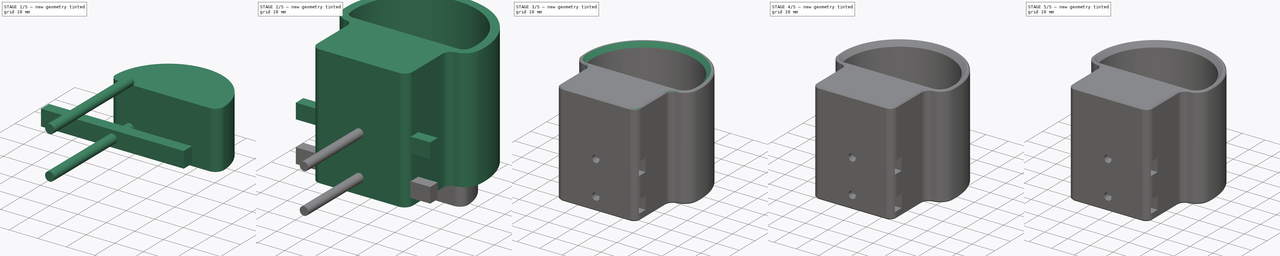
[diagram: build sequence overview — one tinted view per stage of 5, left to right]
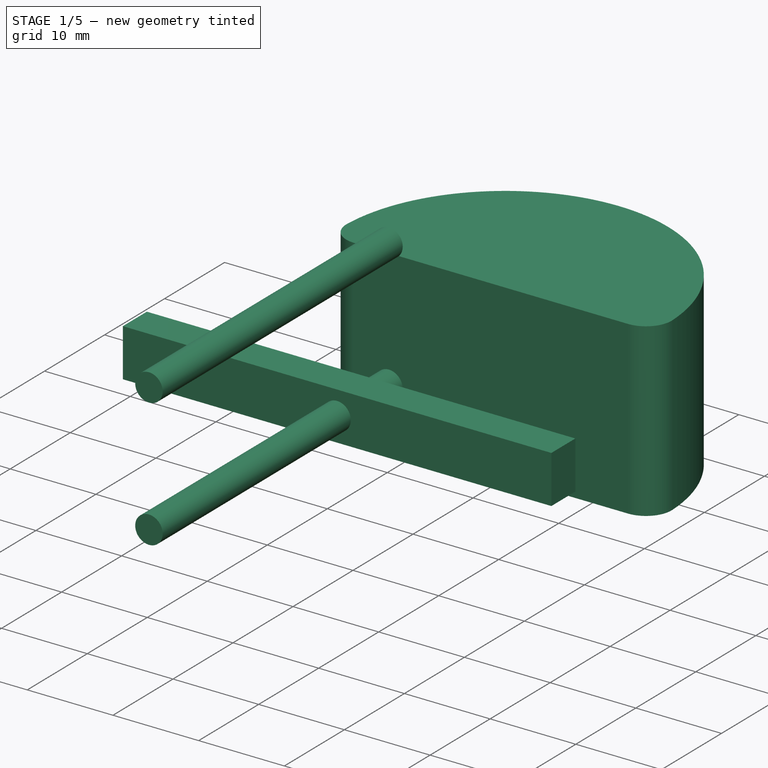
[diagram: stage 1 of 5 — iso view after this stage's code; geometry added in this stage tinted green]
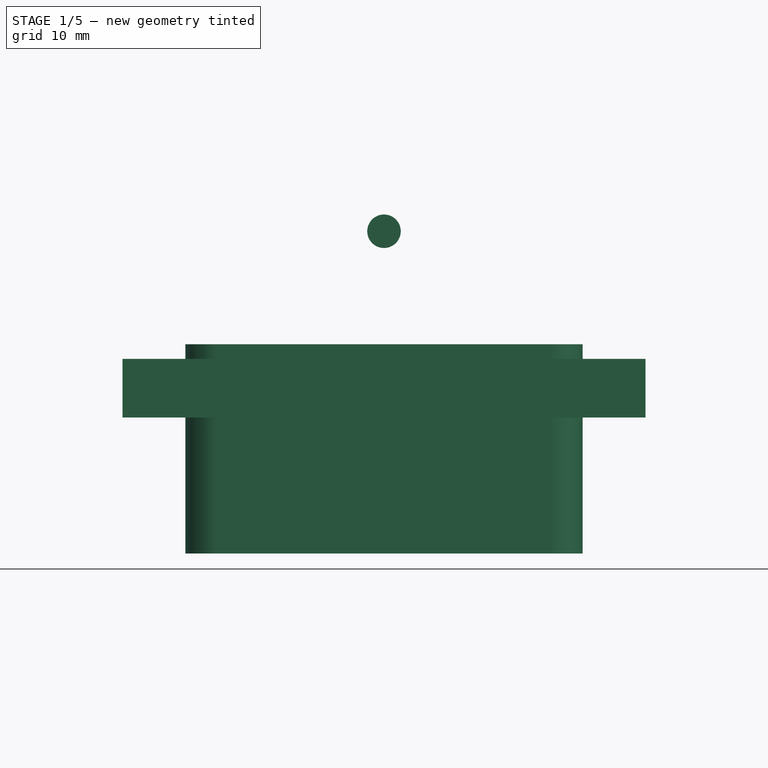
[diagram: stage 1 of 5 — front view after this stage's code; geometry added in this stage tinted green]
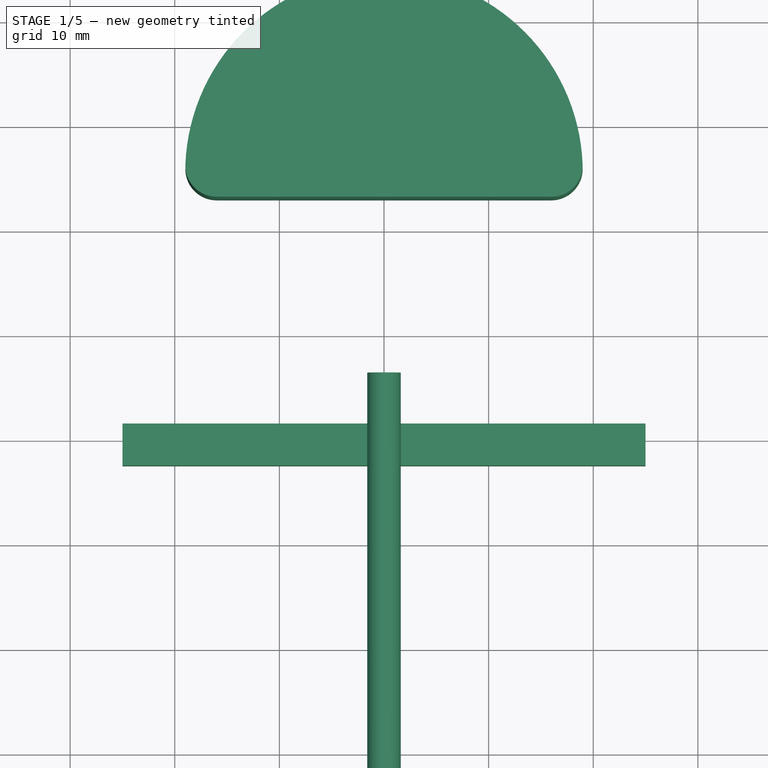
[diagram: stage 1 of 5 — top view after this stage's code; geometry added in this stage tinted green]
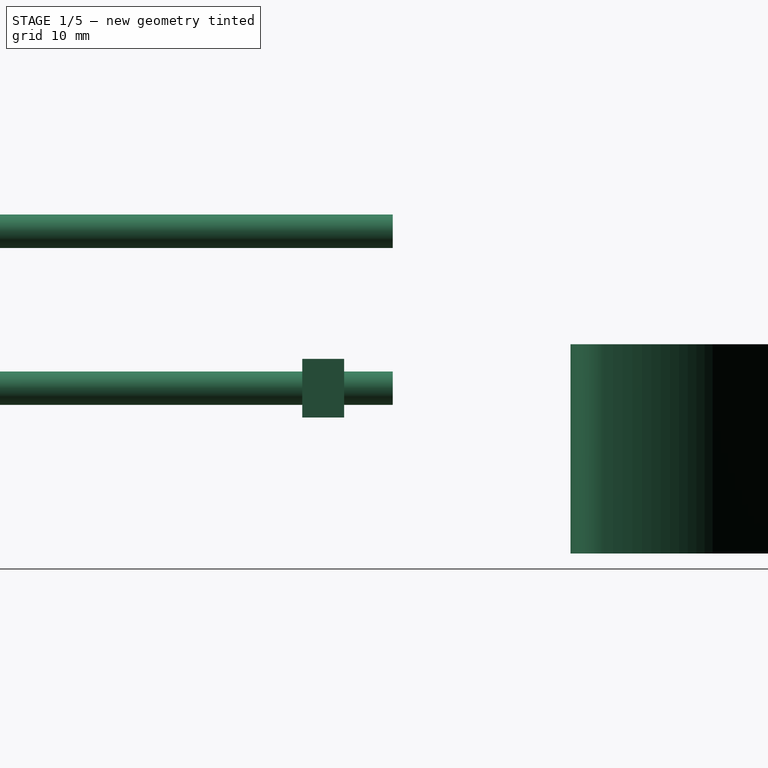
[diagram: stage 1 of 5 — right view after this stage's code; geometry added in this stage tinted green]
FCSTD DOCUMENT  (FreeCAD 0.18R16093 (Git))
Label: remoteholder
License: All rights reserved
LicenseURL: http://en.wikipedia.org/wiki/All_rights_reserved
objects: Sketcher::SketchObject×4, Part::Extrusion×4, Part::Cut×4, Part::MultiFuse×4, Part::Cylinder×3, Part::Chamfer×3, PartDesign::Body×3, Part::Fillet×2, PartDesign::FeatureBase×2, Part::Box×1, Part::Mirroring×1
note: 31 computed .brp shape members not serialized (recipe doc carries the construction recipe); baked Part::Feature solids carry a one-line shape summary decoded from their .brp

FEATURE [Sketcher::SketchObject] Sketch002
  ExternalGeometry = -> [Sketch001]
  MapMode = 5
  Support = -> [XY_Plane]
  sketch-geometry (4):
    g0: LineSegment StartX=-25 StartY=-18.6465 StartZ=0 EndX=25 EndY=-18.6465 EndZ=0
    g1: LineSegment StartX=25 StartY=-18.6465 StartZ=0 EndX=25 EndY=-22.6465 EndZ=0
    g2: LineSegment StartX=25 StartY=-22.6465 StartZ=0 EndX=-25 EndY=-22.6465 EndZ=0
    g3: LineSegment StartX=-25 StartY=-22.6465 StartZ=0 EndX=-25 EndY=-18.6465 EndZ=0
  constraints (11):
    c: Coincident(g0,g1)
    c: Coincident(g1,g2)
    c: Coincident(g2,g3)
    c: Coincident(g3,g0)
    c: Horizontal(g0)
    c: Vertical(g1)
    c: Vertical(g3)
    c: DistanceY(g-3,g2) = 2
    c: DistanceY(g3,g3) = 4
    c: Symmetric(g2,g1,g-2)
    c: DistanceX(g0,g0) = 50
FEATURE [Part::Extrusion] Extrude002  label="nutspace"
  Base = -> Sketch002
  Dir = (0,0,1)
  DirMode = 2
  FaceMakerClass = Part::FaceMakerBullseye
  LengthFwd = 5.6
  LengthRev = 0
  Placement = pos=(0,0,3) rot=(0,0,1;0rad)
  Solid = true
  Symmetric = false
FEATURE [PartDesign::Body] Body001  label="nutspace2"
  BaseFeature = -> Extrude002
  Group = -> [Clone]
  Origin = -> Origin001
  Placement = pos=(0,0,18) rot=(0,0,1;0rad)
  Tip = -> Clone
  expr: Placement.Base.z = 3 + 15
FEATURE [Sketcher::SketchObject] Sketch003
  ExternalGeometry = -> [Sketch]
  MapMode = 5
  Support = -> [XY_Plane]
  sketch-geometry (4):
    g0: ArcOfCircle CenterX=0 CenterY=5.33906 CenterZ=0 NormalX=0 NormalY=0 NormalZ=1 AngleXU=0 Radius=19 StartAngle=0.0413206 EndAngle=3.10027
    g1: ArcOfCircle CenterX=-15.9863 CenterY=6 CenterZ=0 NormalX=0 NormalY=0 NormalZ=1 AngleXU=0 Radius=3 StartAngle=3.10027 EndAngle=4.71239
    g2: ArcOfCircle CenterX=15.9863 CenterY=6 CenterZ=0 NormalX=0 NormalY=0 NormalZ=1 AngleXU=0 Radius=3 StartAngle=4.71239 EndAngle=6.32451
    g3: LineSegment StartX=-15.9863 StartY=3 StartZ=0 EndX=15.9863 EndY=3 EndZ=0
  constraints (11):
    c: Coincident(g0,g-3)
    c: Tangent(g1,g0) = -1.5708
    c: Coincident(g2,g0)
    c: Symmetric(g2,g1,g-2)
    c: Horizontal(g0,g0)
    c: Horizontal(g3)
    c: Tangent(g3,g1) = -1.5708
    c: Coincident(g2,g3)
    c: Radius(g2) = 3
    c: DistanceY(g-1,g2) = 3
    c: Radius(g0) = 19
FEATURE [PartDesign::Body] Body
  Group = -> [Sketch,Sketch001,Sketch002,Sketch003]
  Origin = -> Origin
FEATURE [Part::Extrusion] Extrude003
  Base = -> Sketch003
  Dir = (0,0,1)
  DirMode = 2
  FaceMakerClass = Part::FaceMakerBullseye
  LengthFwd = 10
  LengthRev = 10
  Solid = true
  Symmetric = false
FEATURE [Part::Cylinder] Cylinder002
  Angle = 360
  AttacherType = Attacher::AttachEngine3D
  Height = 40
  Placement = pos=(0,-14,5.8) rot=(1,0,0;1.5708rad)
  Radius = 1.6
  expr: Placement.Base.z = 5.6 / 2 + 3
  expr: Radius = 3.2 / 2
FEATURE [PartDesign::FeatureBase] Clone001
  BaseFeature = -> Cylinder002
  Placement = pos=(0,-14,5.8) rot=(1,0,0;1.5708rad)
FEATURE [PartDesign::Body] Body002
  BaseFeature = -> Cylinder002
  Group = -> [Clone001]
  Origin = -> Origin002
  Placement = pos=(0,0,15) rot=(0,0,1;0rad)
  Tip = -> Clone001
FEATURE [Part::MultiFuse] Fusion003  label="M3_screw_holes"
  Shapes = -> [Cylinder002,Body002]
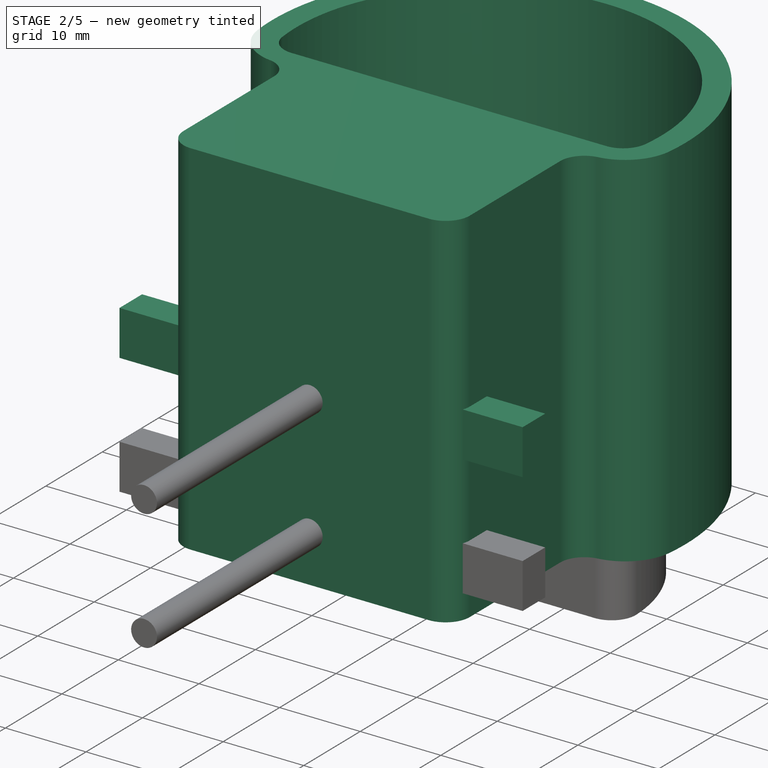
[diagram: stage 2 of 5 — iso view after this stage's code; geometry added in this stage tinted green]
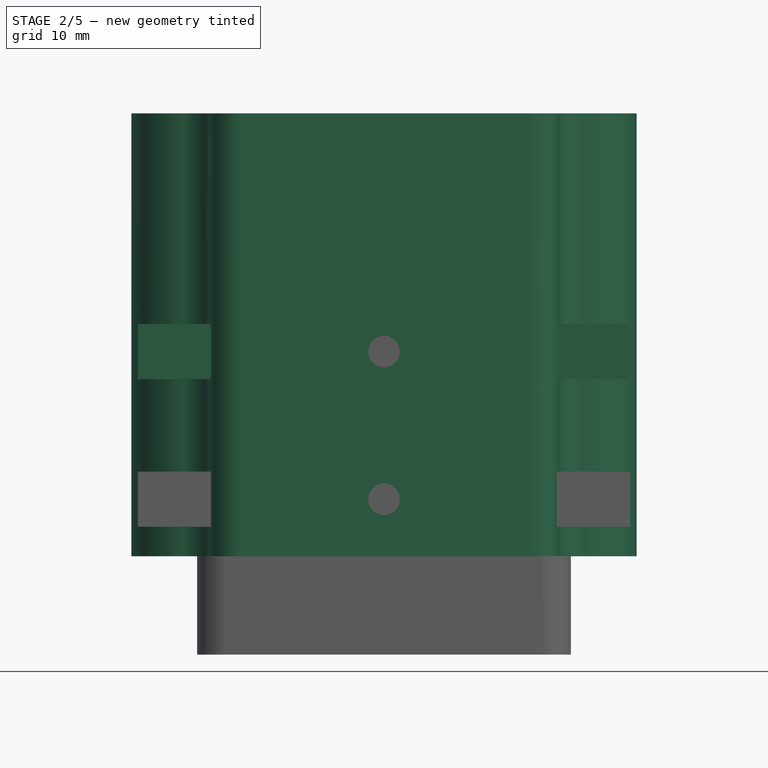
[diagram: stage 2 of 5 — front view after this stage's code; geometry added in this stage tinted green]
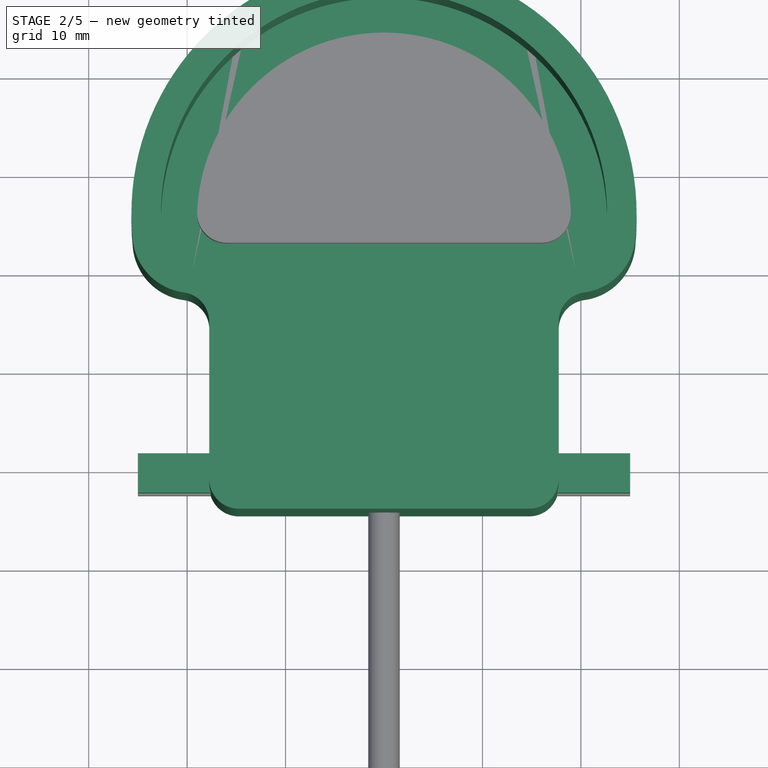
[diagram: stage 2 of 5 — top view after this stage's code; geometry added in this stage tinted green]
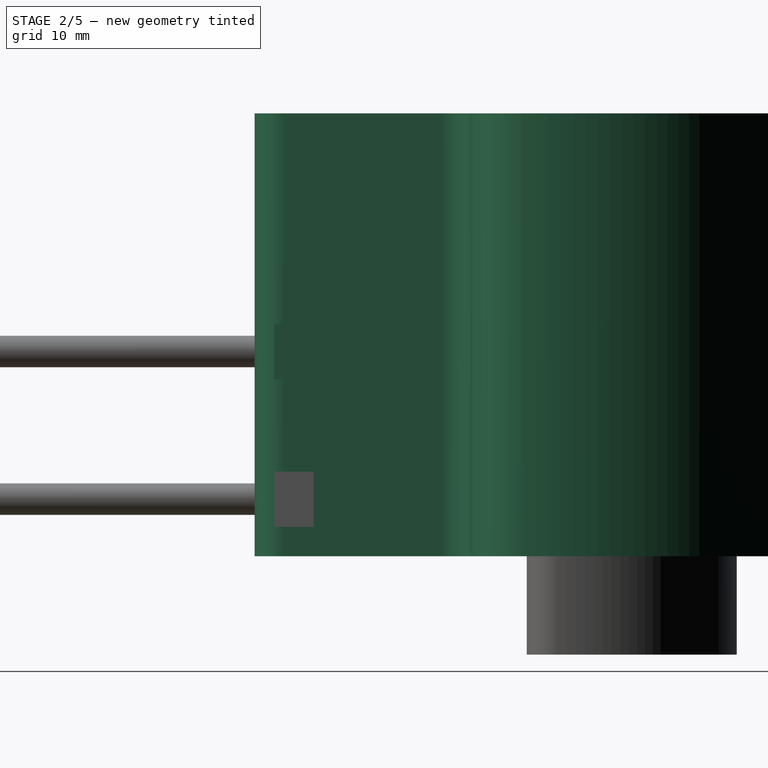
[diagram: stage 2 of 5 — right view after this stage's code; geometry added in this stage tinted green]
FEATURE [Sketcher::SketchObject] Sketch  label="innerKeepout"
  MapMode = 5
  Support = -> [XY_Plane]
  sketch-geometry (7):
    g0: LineSegment [constr] StartX=-22.5 StartY=0 StartZ=0 EndX=22.5 EndY=0 EndZ=0
    g1: ArcOfCircle CenterX=0 CenterY=5.33906 CenterZ=0 NormalX=0 NormalY=0 NormalZ=1 AngleXU=0 Radius=22.6609 StartAngle=6.16393 EndAngle=9.54403
    g2: GeomPoint X=0 Y=28 Z=0
    g3: LineSegment [constr] StartX=0 StartY=0 StartZ=0 EndX=0 EndY=28 EndZ=0
    g4: ArcOfCircle CenterX=-19.5213 CenterY=3 CenterZ=0 NormalX=0 NormalY=0 NormalZ=1 AngleXU=0 Radius=3 StartAngle=3.26084 EndAngle=4.71239
    g5: ArcOfCircle CenterX=19.5213 CenterY=3 CenterZ=0 NormalX=0 NormalY=0 NormalZ=1 AngleXU=0 Radius=3 StartAngle=4.71239 EndAngle=6.16393
    g6: LineSegment StartX=-19.5213 StartY=0 StartZ=0 EndX=19.5213 EndY=0 EndZ=0
  constraints (18):
    c: PointOnObject(g0,g-1)
    c: DistanceX(g0,g0) = 45
    c: Symmetric(g0,g0,g-1)
    c: PointOnObject(g1,g-2)
    c: PointOnObject(g2,g1)
    c: Coincident(g3,g-1)
    c: Coincident(g3,g2)
    c: DistanceY(g3,g3) = 28
    c: Tangent(g4,g0) = -1.5708
    c: Tangent(g4,g1) = -1.5708
    c: Radius(g4) = 3
    c: Symmetric(g4,g5,g-1)
    c: Tangent(g5,g1) = -1.5708
    c: Equal(g4,g5)
    c: Vertical(g1,g0)
    c: PointOnObject(g2,g-2)
    c: Coincident(g6,g4)
    c: Coincident(g6,g5)
FEATURE [Part::Extrusion] Extrude
  Base = -> Sketch
  Dir = (0,0,1)
  DirMode = 2
  FaceMakerClass = Part::FaceMakerBullseye
  LengthFwd = 45
  LengthRev = 0
  Placement = pos=(0,0,3) rot=(0,0,1;0rad)
  Solid = true
  Symmetric = false
FEATURE [Sketcher::SketchObject] Sketch001
  ExternalGeometry = -> [Sketch]
  MapMode = 5
  Support = -> [XY_Plane]
  sketch-geometry (13):
    g0: ArcOfCircle CenterX=-14.75 CenterY=-21.6465 CenterZ=0 NormalX=0 NormalY=0 NormalZ=1 AngleXU=0 Radius=3 StartAngle=3.14159 EndAngle=4.71239
    g1: ArcOfCircle CenterX=14.75 CenterY=-21.6465 CenterZ=0 NormalX=0 NormalY=0 NormalZ=1 AngleXU=0 Radius=3 StartAngle=4.71239 EndAngle=6.28319
    g2: LineSegment StartX=-14.75 StartY=-24.6465 StartZ=0 EndX=14.75 EndY=-24.6465 EndZ=0
    g3: LineSegment StartX=-17.75 StartY=-21.6465 StartZ=0 EndX=-17.75 EndY=-5.64647 EndZ=0
    g4: LineSegment StartX=17.75 StartY=-21.6465 StartZ=0 EndX=17.75 EndY=-5.64647 EndZ=0
    g5: ArcOfCircle CenterX=-20.75 CenterY=-5.64647 CenterZ=0 NormalX=0 NormalY=0 NormalZ=1 AngleXU=0 Radius=3 StartAngle=1e-16 EndAngle=1.4373
    g6: ArcOfCircle CenterX=20.75 CenterY=-5.64647 CenterZ=0 NormalX=0 NormalY=0 NormalZ=1 AngleXU=0 Radius=3 StartAngle=1.70429 EndAngle=3.14159
    g7: ArcOfCircle CenterX=0 CenterY=5.33906 CenterZ=0 NormalX=0 NormalY=0 NormalZ=1 AngleXU=0 Radius=25.6609 StartAngle=6.17793 EndAngle=9.53003
    g8: LineSegment [constr] StartX=0 StartY=5.33906 StartZ=0 EndX=-36.3932 EndY=15.137 EndZ=0
    g9: GeomPoint X=-24.7787 Y=12.0101 Z=0
    g10: GeomPoint X=-21.8818 Y=11.2302 Z=0
    g11: ArcOfCircle CenterX=-19.5521 CenterY=3.27346 CenterZ=0 NormalX=0 NormalY=0 NormalZ=1 AngleXU=0 Radius=6 StartAngle=3.24685 EndAngle=4.5789
    g12: ArcOfCircle CenterX=19.5521 CenterY=3.27346 CenterZ=0 NormalX=0 NormalY=0 NormalZ=1 AngleXU=0 Radius=6 StartAngle=4.84588 EndAngle=6.17793
  constraints (34):
    c: Tangent(g2,g0) = -1.5708
    c: Horizontal(g2)
    c: Tangent(g1,g2) = -1.5708
    c: Equal(g0,g1)
    c: Horizontal(g0,g0)
    c: Symmetric(g0,g1,g-2)
    c: Radius(g0) = 3
    c: DistanceX(g0,g1) = 35.5
    c: Vertical(g3)
    c: Coincident(g3,g0)
    c: Coincident(g1,g4)
    c: Symmetric(g4,g3,g-2)
    c: Coincident(g6,g4)
    c: Coincident(g5,g3)
    c: Horizontal(g5,g3)
    c: Symmetric(g6,g5,g-2)
    c: Radius(g5) = 3
    c: Symmetric(g5,g6,g-2)
    c: DistanceY(g3,g3) = 16
    c: Coincident(g7,g-3)
    c: Coincident(g8,g7)
    c: PointOnObject(g9,g8)
    c: PointOnObject(g9,g7)
    c: PointOnObject(g10,g-3)
    c: PointOnObject(g10,g8)
    c: Distance(g10,g9) = 3
    c: Tangent(g11,g7) = -1.5708
    c: Radius(g11) = 6
    c: Horizontal(g7,g-3)
    c: Horizontal(g7,g7)
    c: Tangent(g5,g11) = 1.5708
    c: Coincident(g12,g7)
    c: Coincident(g6,g12)
    c: Symmetric(g12,g11,g-2)
FEATURE [Part::Extrusion] Extrude001
  Base = -> Sketch001
  Dir = (0,0,1)
  DirMode = 2
  FaceMakerClass = Part::FaceMakerBullseye
  LengthFwd = 45
  LengthRev = 0
  Solid = true
  Symmetric = false
FEATURE [Part::Cut] Cut
  Base = -> Extrude001
  Tool = -> Extrude
FEATURE [PartDesign::FeatureBase] Clone
  BaseFeature = -> Extrude002
FEATURE [Part::MultiFuse] Fusion002  label="M3_nut_inserts"
  Shapes = -> [Extrude002,Body001,Extrude003]
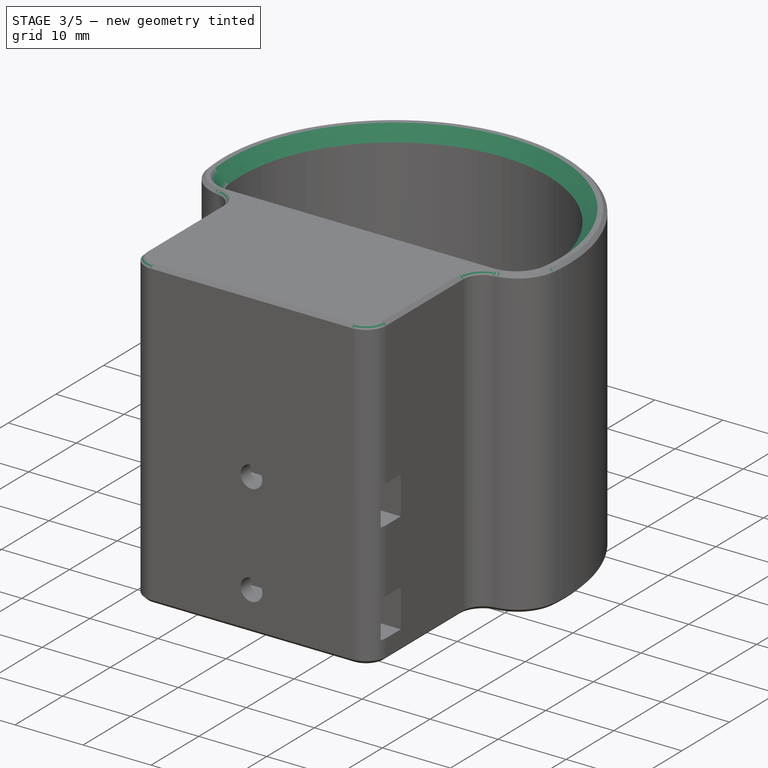
[diagram: stage 3 of 5 — iso view after this stage's code; geometry added in this stage tinted green]
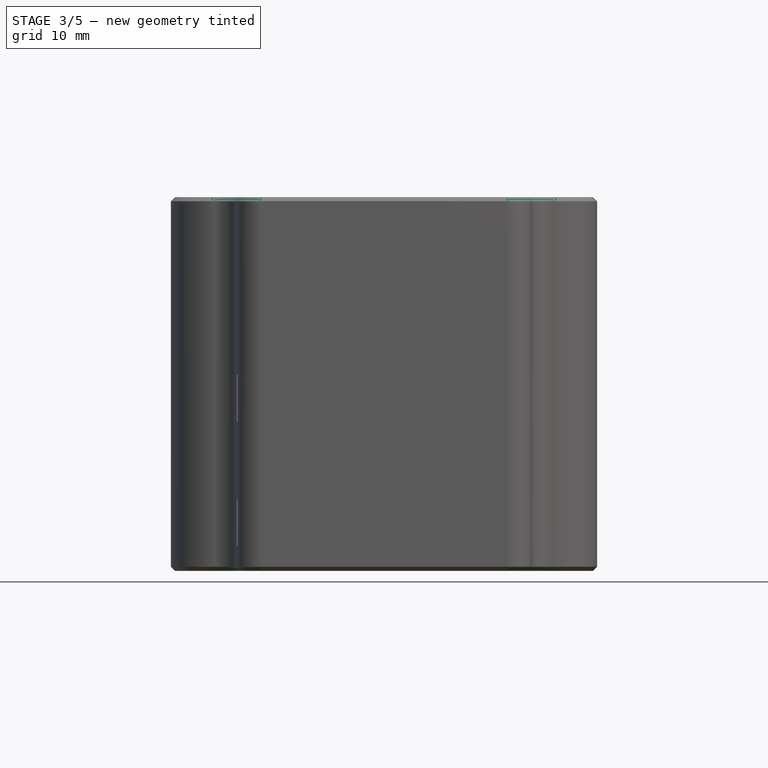
[diagram: stage 3 of 5 — front view after this stage's code; geometry added in this stage tinted green]
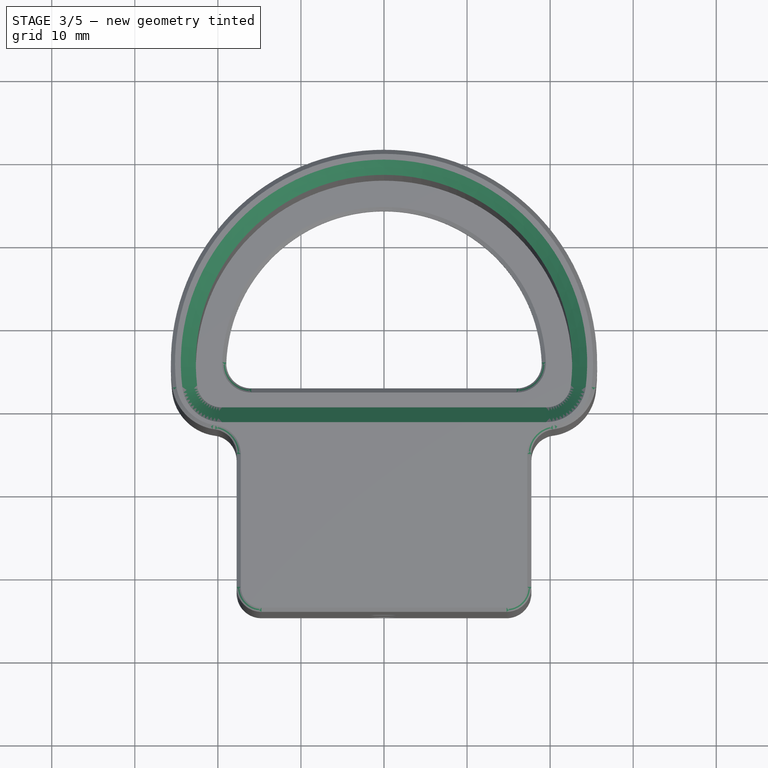
[diagram: stage 3 of 5 — top view after this stage's code; geometry added in this stage tinted green]
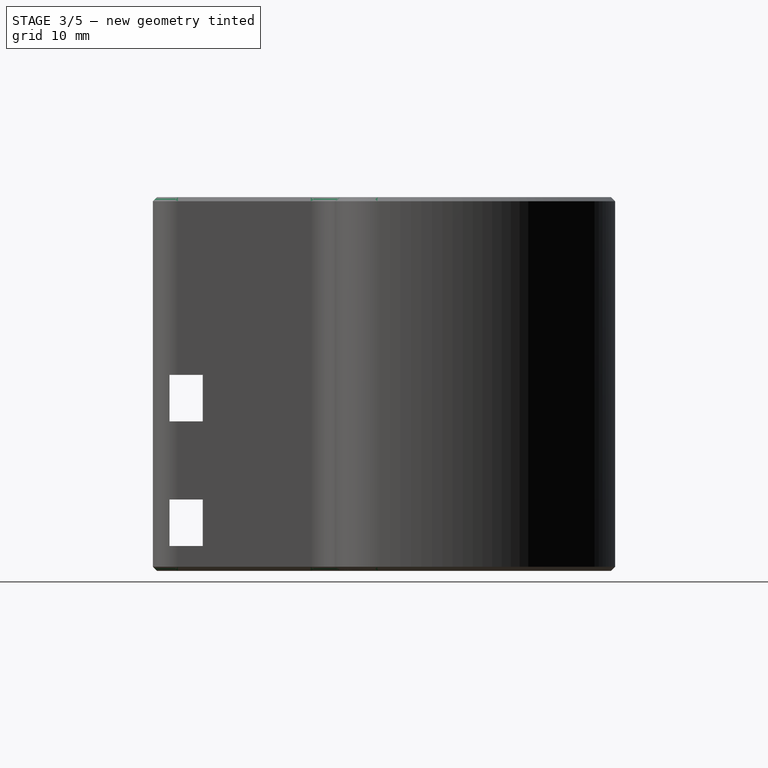
[diagram: stage 3 of 5 — right view after this stage's code; geometry added in this stage tinted green]
FEATURE [Part::Cut] Cut002
  Base = -> Cut
  Tool = -> Fusion002
FEATURE [Part::Cut] Cut003
  Base = -> Cut002
  Tool = -> Fusion003
FEATURE [Part::Chamfer] Chamfer001
  Base = -> Cut003
  Edges = 4 edges r=1.8: [Edge38,Edge39,Edge40,Edge41]
FEATURE [Part::Chamfer] Chamfer002
  Base = -> Chamfer001
  Edges = 28 edges r=0.5: [Edge5,Edge6,Edge7,Edge8,Edge9,Edge10,Edge11,Edge12,Edge13,Edge14,Edge23,Edge34,Edge42,Edge47,Edge48,Edge59,Edge60,Edge69,Edge71,Edge72,Edge81,Edge82,Edge83,Edge84,Edge99,Edge100,Edge101,Edge102]
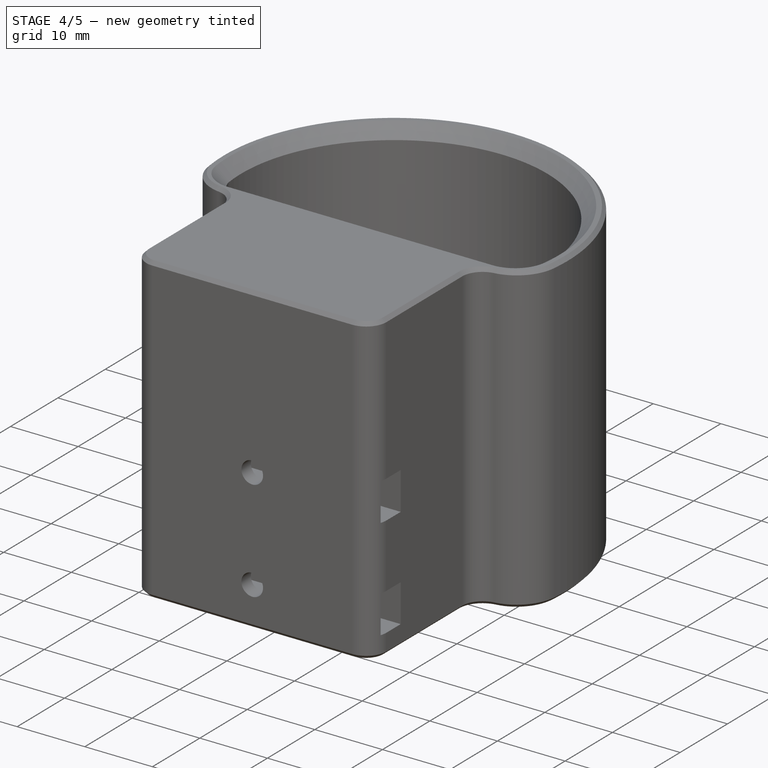
[diagram: stage 4 of 5 — iso view after this stage's code; geometry added in this stage tinted green]
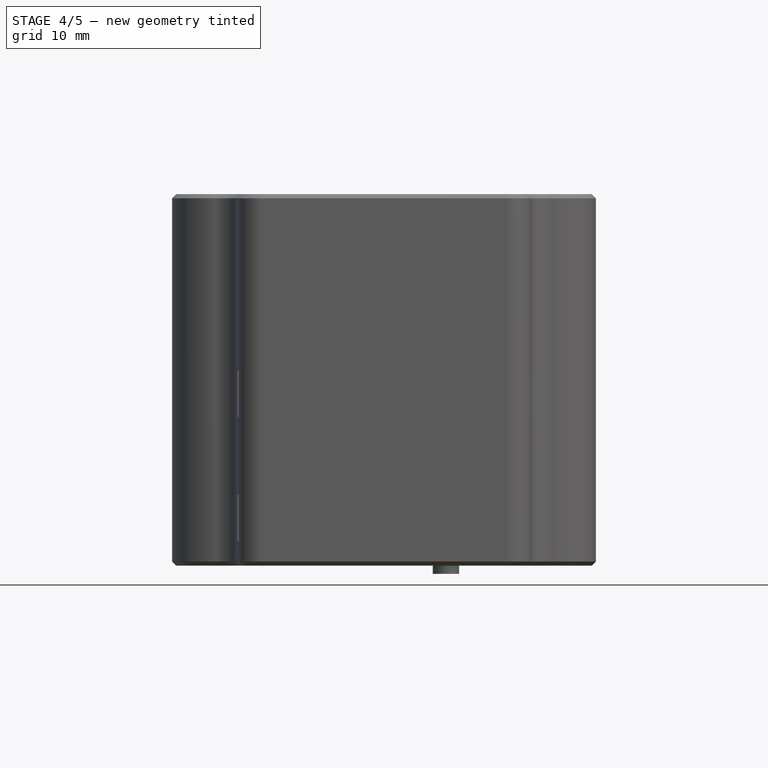
[diagram: stage 4 of 5 — front view after this stage's code; geometry added in this stage tinted green]
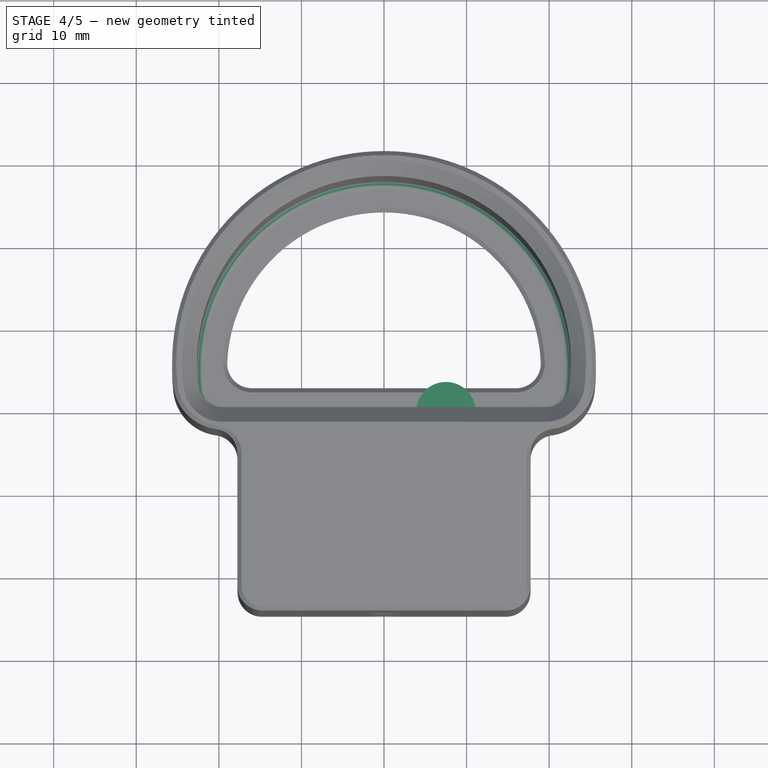
[diagram: stage 4 of 5 — top view after this stage's code; geometry added in this stage tinted green]
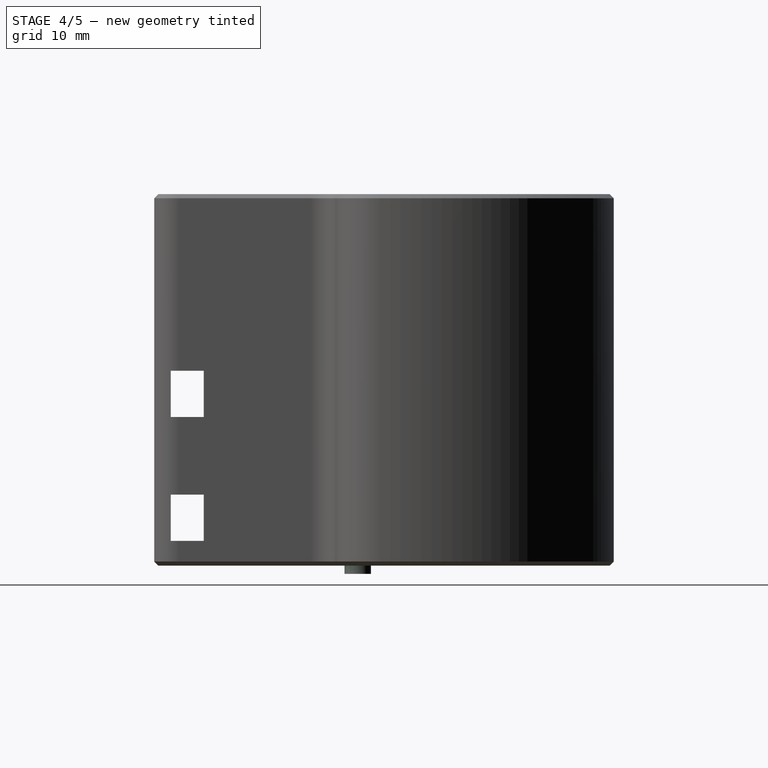
[diagram: stage 4 of 5 — right view after this stage's code; geometry added in this stage tinted green]
FEATURE [Part::Cylinder] Cylinder
  Angle = 360
  AttacherType = Attacher::AttachEngine3D
  Height = 10
  Placement = pos=(-7.5,0,-1) rot=(0,0,1;0rad)
  Radius = 1.6
  expr: Radius = 3.2 / 2
FEATURE [Part::Cylinder] Cylinder001
  Angle = 360
  AttacherType = Attacher::AttachEngine3D
  Height = 10
  Placement = pos=(-7.5,0,2) rot=(0,0,1;0rad)
  Radius = 3.6
  expr: Placement.Base.x = -15 / 2
  expr: Radius = 7.2 / 2
FEATURE [Part::MultiFuse] Fusion
  Shapes = -> [Cylinder,Cylinder001]
FEATURE [Part::Mirroring] Part__Mirroring  label="Fusion (Mirror #1)"
  Base = (0,0,0)
  Normal = (1,0,0)
  Source = -> Fusion
FEATURE [Part::Fillet] Fillet001  label="remoteholder"
  Base = -> Chamfer002
  Edges = 4 edges r=1: [Edge94,Edge97,Edge98,Edge100]
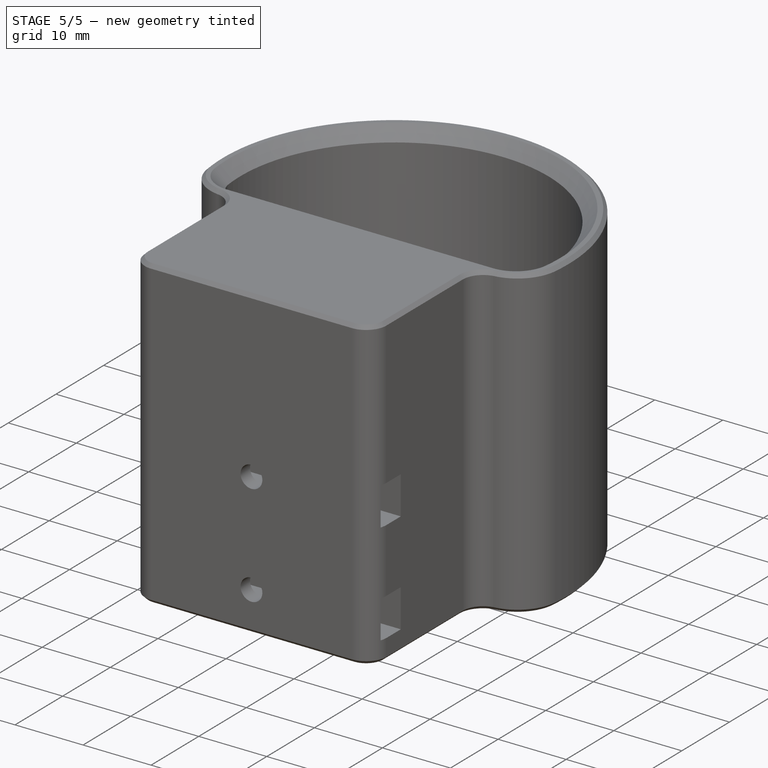
[diagram: stage 5 of 5 — iso view after this stage's code; geometry added in this stage tinted green]
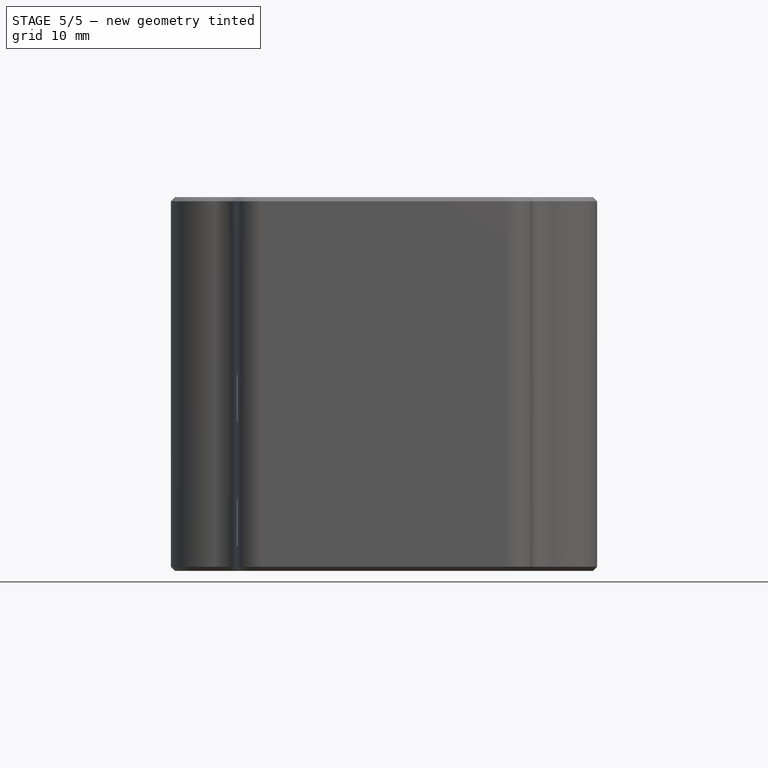
[diagram: stage 5 of 5 — front view after this stage's code; geometry added in this stage tinted green]
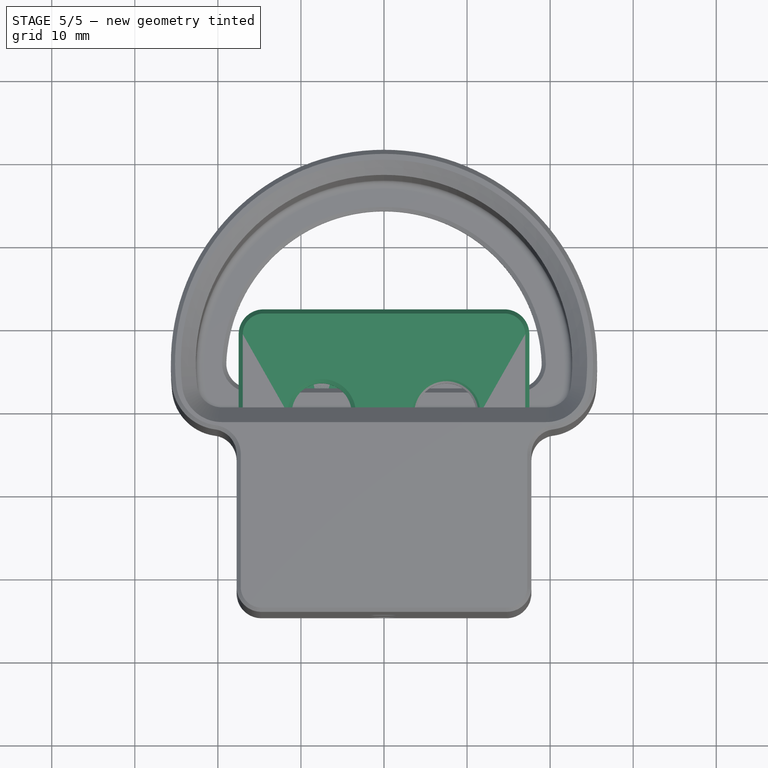
[diagram: stage 5 of 5 — top view after this stage's code; geometry added in this stage tinted green]
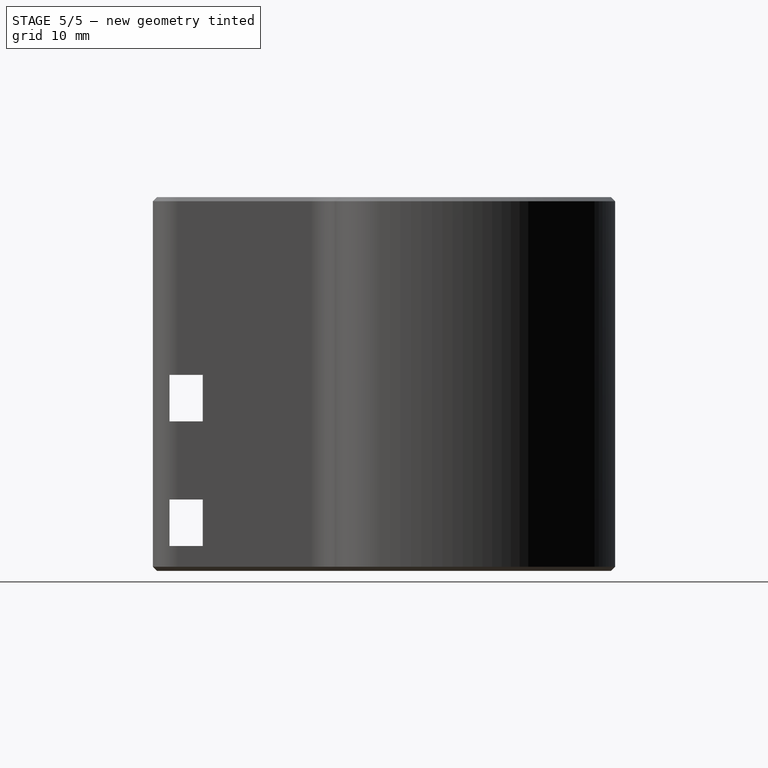
[diagram: stage 5 of 5 — right view after this stage's code; geometry added in this stage tinted green]
FEATURE [Part::Box] Box  label="Cube"
  AttacherType = Attacher::AttachEngine3D
  Height = 3.75
  Length = 35
  Placement = pos=(-17.5,-12.5,0) rot=(0,0,1;0rad)
  Width = 25
  expr: Placement.Base.y = -25 / 2
  expr: Placement.Base.x = -35 / 2
FEATURE [Part::MultiFuse] Fusion001
  Shapes = -> [Fusion,Part__Mirroring]
FEATURE [Part::Cut] Cut001
  Base = -> Box
  Tool = -> Fusion001
FEATURE [Part::Fillet] Fillet
  Base = -> Cut001
  Edges = 4 edges r=3: [Edge1,Edge3,Edge6,Edge13]
FEATURE [Part::Chamfer] Chamfer  label="mountplate"
  Base = -> Fillet
  Edges = 20 edges r=0.5: [Edge1,Edge4,Edge5,Edge6,Edge7,Edge8,Edge9,Edge10,Edge11,Edge12,Edge13,Edge14,Edge16,Edge18,Edge19,Edge20,Edge21,Edge22,Edge23,Edge24]
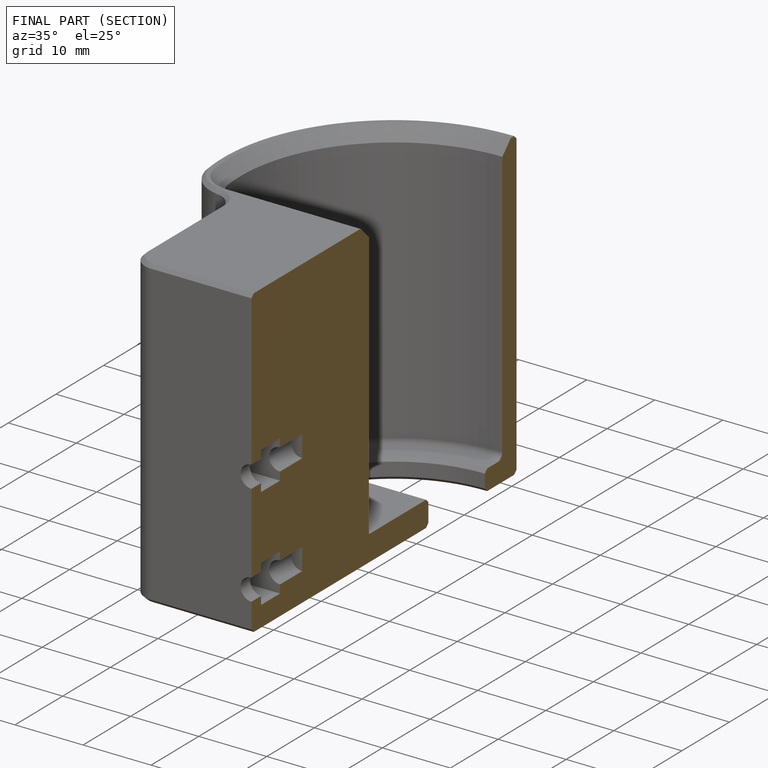
[diagram: finished part — half-section view (interior)]
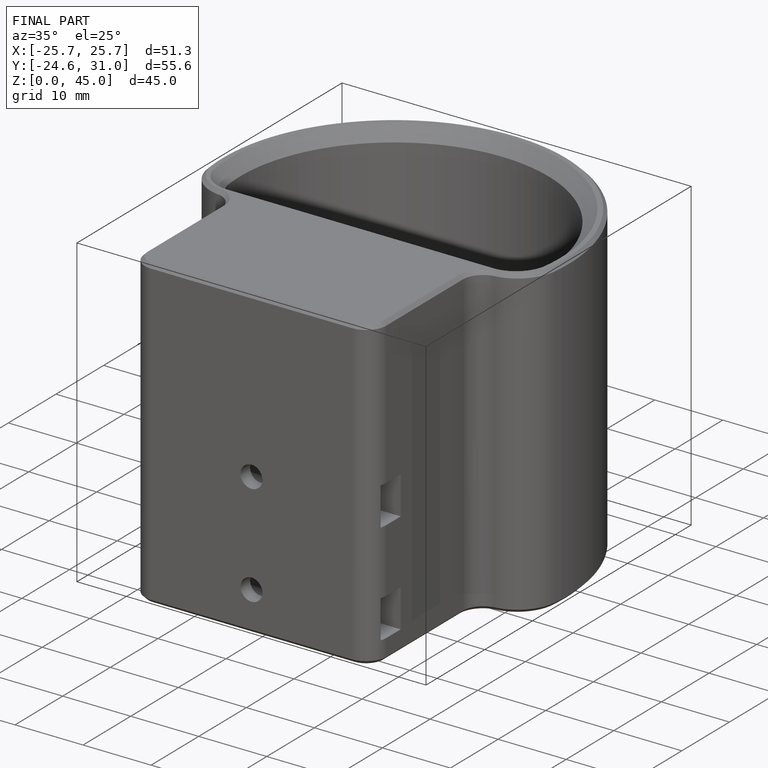
[diagram: finished part — iso view with bounding-box wireframe]
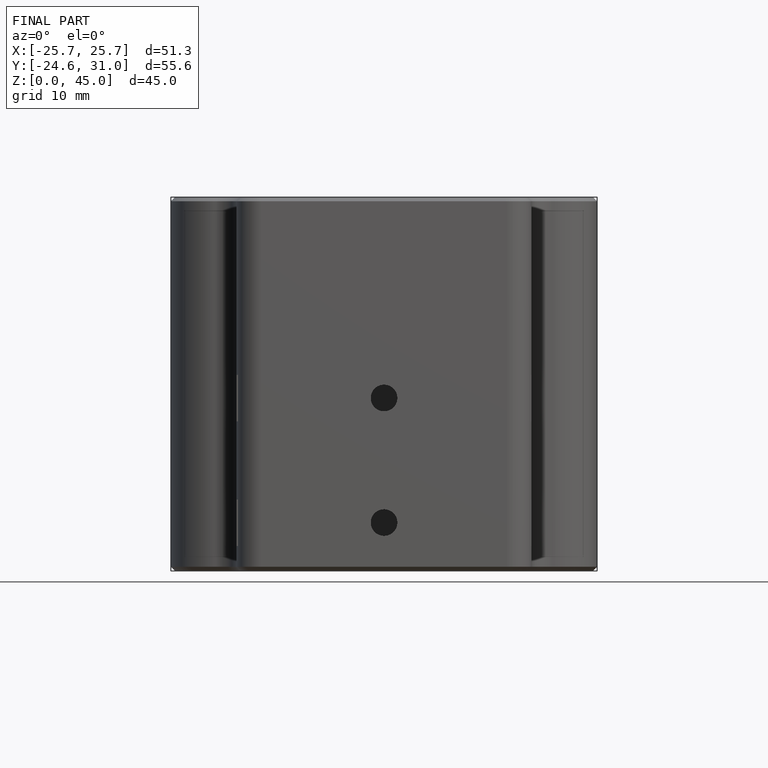
[diagram: finished part — front view with bounding-box wireframe]
